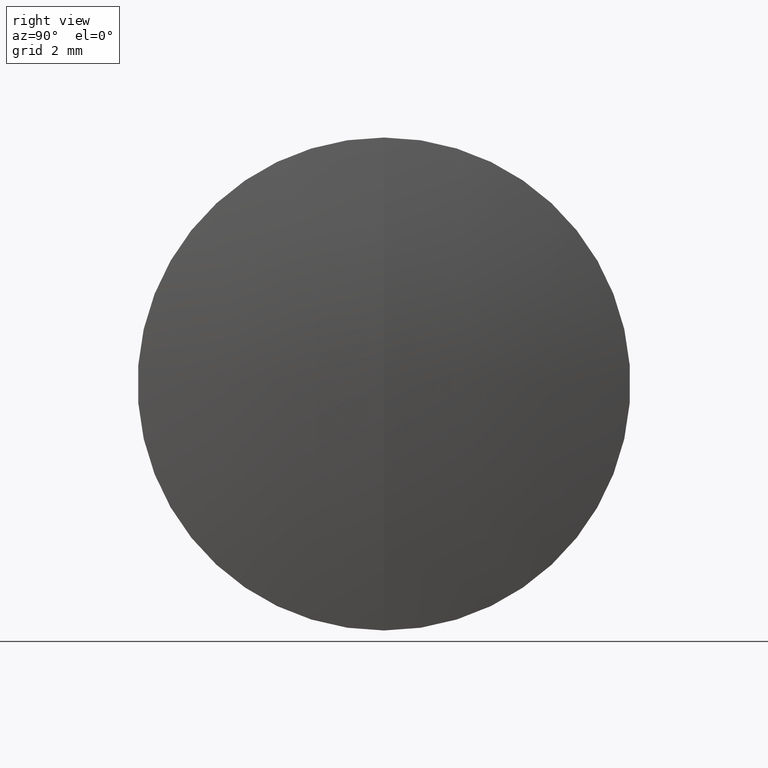
[diagram: clean part render]
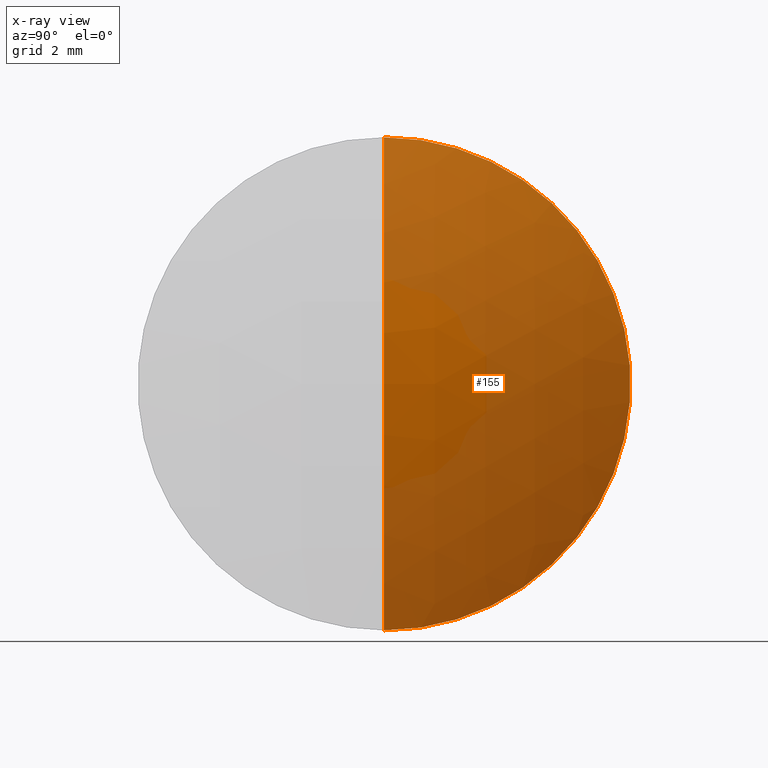
[diagram: x-ray — body ghosted, one internal face saturated and labeled with its STEP entity id]
A machine part, right view, then the same camera in x-ray: the body is ghosted and one INTERNAL B-rep face — a face not visible from any outside direction — is saturated and labeled: STEP entity #155.
In plain terms, the highlighted spherical surface has radius 11.505 mm.
Its self-contained STEP definition (entity closure, byte-faithful):
#27 = CARTESIAN_POINT ( 'NONE',  ( -6.639429321230914600, 0.0000000000000000000, 1.084202172485504400E-016 ) ) ;
#35 = ORIENTED_EDGE ( 'NONE', *, *, #71, .F. ) ;
#44 = VERTEX_POINT ( 'NONE', #112 ) ;
#63 = FACE_OUTER_BOUND ( 'NONE', #185, .T. ) ;
#64 = DIRECTION ( 'NONE',  ( 0.0000000000000000000, 0.0000000000000000000, 1.000000000000000000 ) ) ;
#71 = EDGE_CURVE ( 'NONE', #44, #305, #296, .T. ) ;
#75 = DIRECTION ( 'NONE',  ( 0.0000000000000000000, 0.0000000000000000000, -1.000000000000000000 ) ) ;
#91 = AXIS2_PLACEMENT_3D ( 'NONE', #208, #270, #64 ) ;
#107 = CIRCLE ( 'NONE', #278, 11.50500000000000100 ) ;
#109 = EDGE_CURVE ( 'NONE', #44, #243, #107, .T. ) ;
#112 = CARTESIAN_POINT ( 'NONE',  ( 4.865570678769086200, 0.0000000000000000000, 8.128982884580655200E-016 ) ) ;
#133 = SPHERICAL_SURFACE ( 'NONE', #315, 11.50500000000000100 ) ;
#135 = DIRECTION ( 'NONE',  ( 0.0000000000000000000, -1.224646799147353500E-016, 1.000000000000000000 ) ) ;
#155 = ADVANCED_FACE ( 'NONE', ( #63 ), #133, .T. ) ;
#164 = DIRECTION ( 'NONE',  ( -0.0000000000000000000, 1.000000000000000000, 1.224646799147353200E-016 ) ) ;
#170 = ORIENTED_EDGE ( 'NONE', *, *, #109, .T. ) ;
#178 = EDGE_CURVE ( 'NONE', #305, #243, #340, .T. ) ;
#185 = EDGE_LOOP ( 'NONE', ( #35, #170, #306 ) ) ;
#187 = DIRECTION ( 'NONE',  ( 0.0000000000000000000, 1.000000000000000000, 0.0000000000000000000 ) ) ;
#191 = DIRECTION ( 'NONE',  ( 0.0000000000000000000, -1.000000000000000000, 0.0000000000000000000 ) ) ;
#197 = DIRECTION ( 'NONE',  ( 0.0000000000000000000, 0.0000000000000000000, 1.000000000000000000 ) ) ;
#208 = CARTESIAN_POINT ( 'NONE',  ( 3.722280238489432700, 0.0000000000000000000, 0.0000000000000000000 ) ) ;
#233 = CARTESIAN_POINT ( 'NONE',  ( -6.639429321230914600, 0.0000000000000000000, 1.084202172485504400E-016 ) ) ;
#243 = VERTEX_POINT ( 'NONE', #330 ) ;
#244 = AXIS2_PLACEMENT_3D ( 'NONE', #27, #191, #75 ) ;
#270 = DIRECTION ( 'NONE',  ( -1.000000000000000000, -0.0000000000000000000, -0.0000000000000000000 ) ) ;
#278 = AXIS2_PLACEMENT_3D ( 'NONE', #233, #164, #135 ) ;
#285 = CARTESIAN_POINT ( 'NONE',  ( -6.639429321230914600, 0.0000000000000000000, 1.084202172485504400E-016 ) ) ;
#296 = CIRCLE ( 'NONE', #244, 11.50500000000000100 ) ;
#305 = VERTEX_POINT ( 'NONE', #323 ) ;
#306 = ORIENTED_EDGE ( 'NONE', *, *, #178, .F. ) ;
#315 = AXIS2_PLACEMENT_3D ( 'NONE', #285, #187, #197 ) ;
#323 = CARTESIAN_POINT ( 'NONE',  ( 3.722280238489432700, 0.0000000000000000000, 5.000000000000000000 ) ) ;
#330 = CARTESIAN_POINT ( 'NONE',  ( 3.722280238489432700, 6.123233995736766300E-016, -5.000000000000000000 ) ) ;
#340 = CIRCLE ( 'NONE', #91, 5.000000000000000000 ) ;